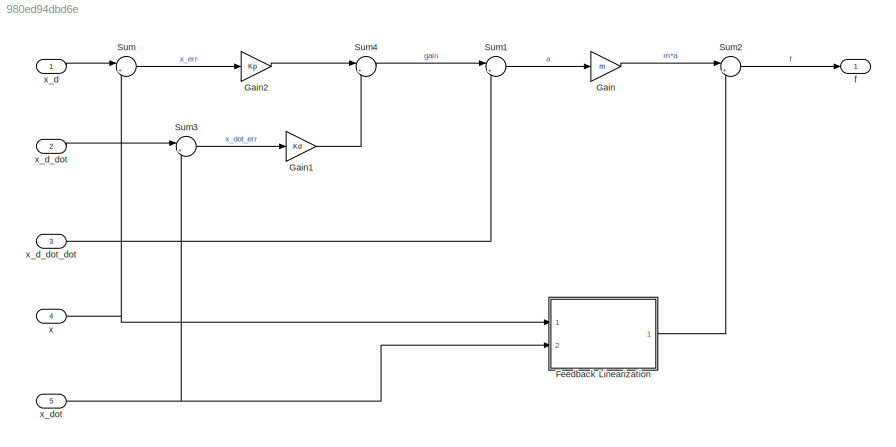
MODEL slx_980ed94dbd6e
KIND model
CONFIG AbsTol = auto
CONFIG EnableMultiTasking = off
CONFIG FixedStep = auto
CONFIG MaxStep = auto
CONFIG MinStep = auto
CONFIG RelTol = 1e-3
CONFIG SampleTimeConstraint = Unconstrained
CONFIG Solver = VariableStepAuto
CONFIG SolverName = VariableStepAuto
CONFIG StartTime = 0.0
CONFIG StopTime = 10.0
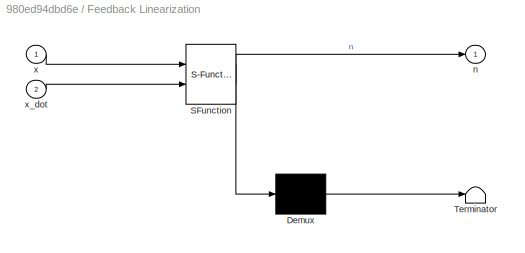
BLOCK [SubSystem] Feedback Linearization
  ErrorFcn = Stateflow.Translate.translate
  PermitHierarchicalResolution = ExplicitOnly
  Ports = [2, 1]
  RequestExecContextInheritance = off
  SFBlockType = MATLAB Function
  TreatAsAtomicUnit = on
BLOCK [Demux] Feedback Linearization/ Demux 
  Outputs = 1
  Ports = [1, 1]
BLOCK [S-Function] Feedback Linearization/ SFunction 
  EnableBusSupport = on
  FunctionName = sf_sfun
  PortCounts = [2 2]
  Ports = [2, 2]
  SFcnIsStateOwnerBlock = off
  SFunctionDeploymentMode = off
  Tag = Stateflow S-Function 2
BLOCK [Terminator] Feedback Linearization/ Terminator 
BLOCK [Outport] Feedback Linearization/n
  IconDisplay = Port number
BLOCK [Inport] Feedback Linearization/x
  IconDisplay = Port number
BLOCK [Inport] Feedback Linearization/x_dot
  IconDisplay = Port number
  Port = 2
BLOCK [Gain] Gain
  Gain = m
  OutDataTypeStr = Inherit: Inherit via internal rule
  ParamDataTypeStr = Inherit: Inherit via internal rule
  SaturateOnIntegerOverflow = off
BLOCK [Gain] Gain1
  Gain = Kd
  OutDataTypeStr = Inherit: Inherit via internal rule
  ParamDataTypeStr = Inherit: Inherit via internal rule
  SaturateOnIntegerOverflow = off
BLOCK [Gain] Gain2
  Gain = Kp
  OutDataTypeStr = Inherit: Inherit via internal rule
  ParamDataTypeStr = Inherit: Inherit via internal rule
  SaturateOnIntegerOverflow = off
BLOCK [Sum] Sum
  IconShape = round
  InputSameDT = off
  Inputs = |+-
  OutDataTypeStr = Inherit: Inherit via internal rule
  Ports = [2, 1]
  SaturateOnIntegerOverflow = off
BLOCK [Sum] Sum1
  IconShape = round
  InputSameDT = off
  Inputs = |++
  OutDataTypeStr = Inherit: Inherit via internal rule
  Ports = [2, 1]
  SaturateOnIntegerOverflow = off
BLOCK [Sum] Sum2
  IconShape = round
  InputSameDT = off
  Inputs = |++
  OutDataTypeStr = Inherit: Inherit via internal rule
  Ports = [2, 1]
  SaturateOnIntegerOverflow = off
BLOCK [Sum] Sum3
  IconShape = round
  InputSameDT = off
  Inputs = |+-
  OutDataTypeStr = Inherit: Inherit via internal rule
  Ports = [2, 1]
  SaturateOnIntegerOverflow = off
BLOCK [Sum] Sum4
  IconShape = round
  InputSameDT = off
  Inputs = |++
  OutDataTypeStr = Inherit: Inherit via internal rule
  Ports = [2, 1]
  SaturateOnIntegerOverflow = off
BLOCK [Outport] f
  IconDisplay = Port number
BLOCK [Inport] x 
  IconDisplay = Port number
  Port = 4
BLOCK [Inport] x_d
  IconDisplay = Port number
BLOCK [Inport] x_d_dot 
  IconDisplay = Port number
  Port = 2
BLOCK [Inport] x_d_dot_dot 
  IconDisplay = Port number
  Port = 3
BLOCK [Inport] x_dot
  IconDisplay = Port number
  Port = 5
LINE Feedback Linearization:1 -> Sum2:2
LINE Gain1:1 -> Sum4:2
LINE Gain2:1 -> Sum4:1
LINE Gain:1 -> Sum2:1
LINE Sum1:1 -> Gain:1
LINE Sum2:1 -> f:1
LINE Sum3:1 -> Gain1:1
LINE Sum4:1 -> Sum1:1
LINE Sum:1 -> Gain2:1
NET x :1 -> Feedback Linearization:1, Sum:2
LINE x_d:1 -> Sum:1
LINE x_d_dot :1 -> Sum3:1
LINE x_d_dot_dot :1 -> Sum1:2
NET x_dot:1 -> Feedback Linearization:2, Sum3:2
note: NET lines group one-source signal fan-out (src -> all destinations, sorted); 1:1 wires keep LINE
CHART Feedback Linearization states=1 transitions=1
  STATE_LABEL 'eML_blk_kernel()'
  STATE_LABEL 'SCRIPT:\nfunction n = fcn(x, x_dot)\n\nn = 2*x_dot;\n'
